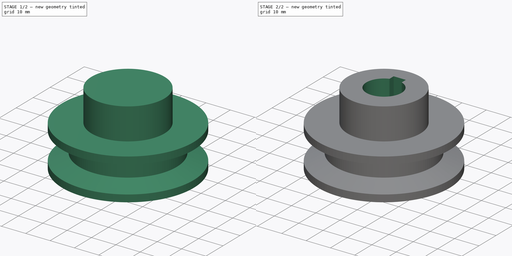
[diagram: build sequence overview — one tinted view per stage of 2, left to right]
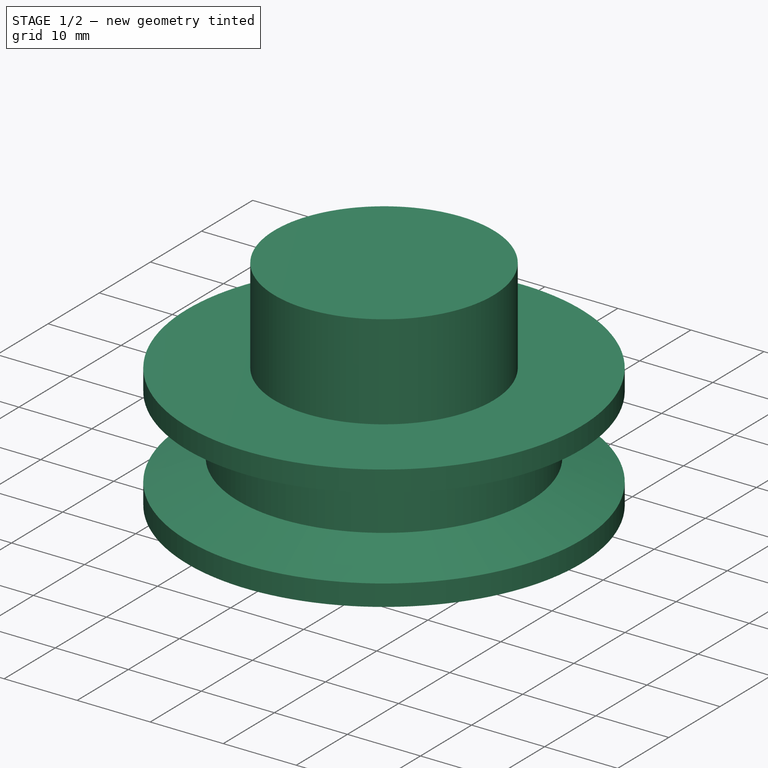
[diagram: stage 1 of 2 — iso view after this stage's code; geometry added in this stage tinted green]
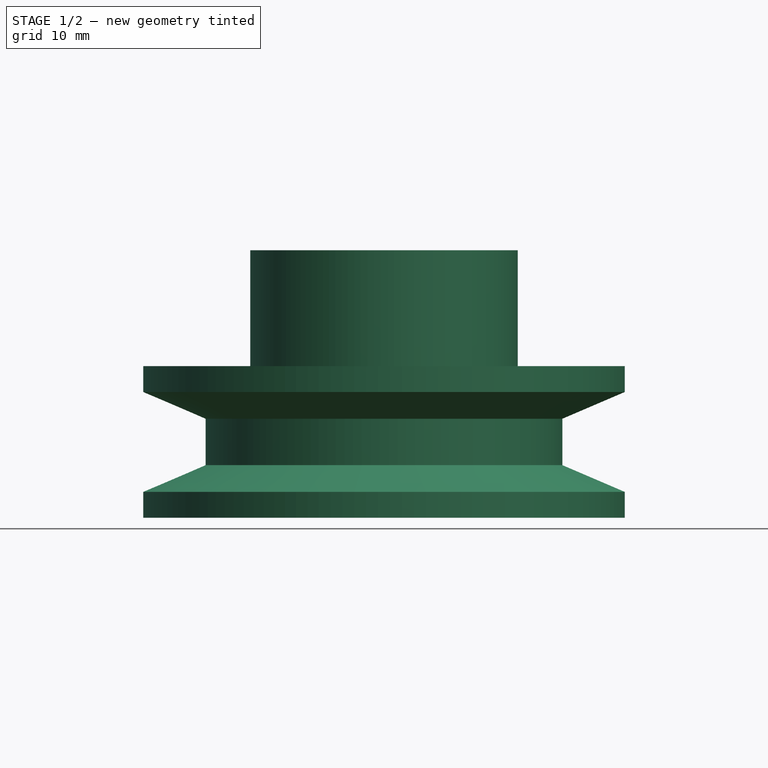
[diagram: stage 1 of 2 — front view after this stage's code; geometry added in this stage tinted green]
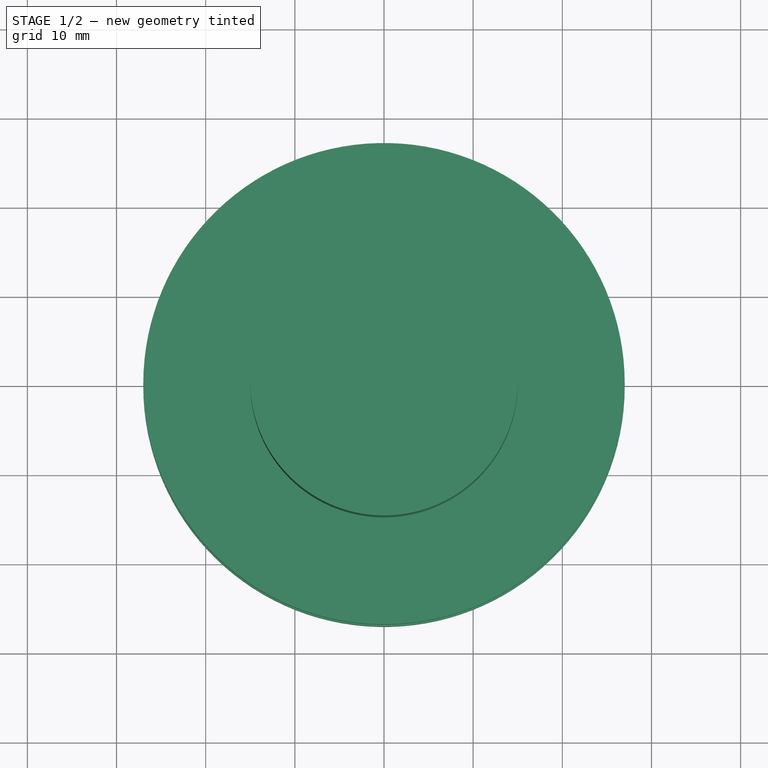
[diagram: stage 1 of 2 — top view after this stage's code; geometry added in this stage tinted green]
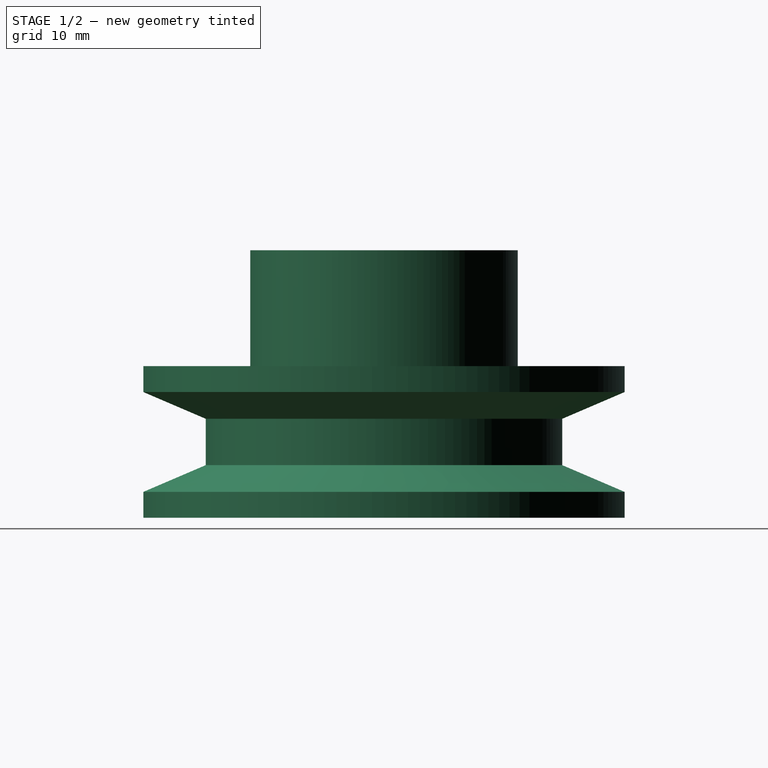
[diagram: stage 1 of 2 — right view after this stage's code; geometry added in this stage tinted green]
FCSTD DOCUMENT  (FreeCAD 0.22R35370 (Git))
Label: pulley4
License: All rights reserved
LicenseURL: http://en.wikipedia.org/wiki/All_rights_reserved
objects: Sketcher::SketchObject×4, Part::Mirroring×2, Part::FeaturePython×2, PartDesign::SubShapeBinder×2, PartDesign::Pocket×2, PartDesign::Revolution×1, PartDesign::Pad×1, PartDesign::Body×1
note: 19 computed .brp shape members not serialized (recipe doc carries the construction recipe); baked Part::Feature solids carry a one-line shape summary decoded from their .brp

FEATURE [Sketcher::SketchObject] Sketch  label="base_Sketch"
  FullyConstrained = true
  sketch-geometry (6):
    g0: LineSegment StartX=0 StartY=8.5 StartZ=0 EndX=27 EndY=8.5 EndZ=0
    g1: LineSegment StartX=27 StartY=8.5 StartZ=0 EndX=27 EndY=5.6 EndZ=0
    g2: LineSegment StartX=27 StartY=5.6 StartZ=0 EndX=20 EndY=2.6 EndZ=0
    g3: LineSegment StartX=20 StartY=2.6 StartZ=0 EndX=20 EndY=0 EndZ=0
    g4: LineSegment StartX=0 StartY=8.5 StartZ=0 EndX=0 EndY=0 EndZ=0
    g5: GeomPoint X=0 Y=-8.5 Z=0
  constraints (18):
    c: PointOnObject(g0,g-2)
    c: Horizontal(g0)
    c: Coincident(g0,g1)
    c: Vertical(g1)
    c: Coincident(g1,g2)
    c: Coincident(g2,g3)
    c: PointOnObject(g3,g-1)
    c: Vertical(g3)
    c: Coincident(g0,g4)
    c: Coincident(g4,g-1)
    c: DistanceY(g3,g3) = 2.6
    c: DistanceY(g1) = 5.6
    c: DistanceX(g3,g1) = 7
    c: DistanceY(g0) = 8.5
    c: DistanceX(g0) = 27  'outer_r'
    c: Symmetric(g5,g0,g-1)
    c: DistanceY(g5,g0) = 17  'height'
    c: DistanceX(g3) = 20  'inner_r'
FEATURE [Part::Mirroring] Part__Mirroring  label="Sketch (Mirror #1)"
  Base = (0,0,0)
  Normal = (0,1,0)
  Source = -> Sketch
FEATURE [Part::FeaturePython] Connect  # WARN: FeaturePython — macro-defined, semantics opaque (R4)
  Objects = -> [Sketch,Part__Mirroring]
  Tolerance = 0
FEATURE [PartDesign::SubShapeBinder] Binder
  BindCopyOnChange = 0
  BindMode = 0
  ClaimChildren = true
  Context = -> Body [Binder.]
  Fuse = false
  MakeFace = true
  OffsetFill = false
  OffsetIntersection = false
  OffsetJoinType = 0
  OffsetOpenResult = false
  PartialLoad = false
  Placement = pos=(0,0,0) rot=(1,0,0;1.5708rad)
  Relative = false
  Support = -> [Connect]
  _Version = 2
FEATURE [PartDesign::Revolution] Revolution
  Angle = 360
  Angle2 = 60
  Axis = (1e-16,1e-16,1)
  Base = (0,0,0)
  Placement = pos=(0,0,0) rot=(1,0,0;1.5708rad)
  Profile = -> Binder [Face1]
  ReferenceAxis = -> Z_Axis
  Reversed = true
  Type = 0
FEATURE [Sketcher::SketchObject] Sketch001
  FullyConstrained = true
  sketch-geometry (3):
    g0: ArcOfCircle CenterX=0 CenterY=0 CenterZ=0 NormalX=0 NormalY=0 NormalZ=1 AngleXU=0 Radius=7.25 StartAngle=4.71239 EndAngle=7.50193
    g1: LineSegment StartX=2.5 StartY=6.80533 StartZ=0 EndX=2.5 EndY=9.25 EndZ=0
    g2: LineSegment StartX=2.5 StartY=9.25 StartZ=0 EndX=0 EndY=9.25 EndZ=0
  constraints (10):
    c: Coincident(g0,g-1)
    c: PointOnObject(g0,g-2)
    c: Coincident(g1,g2)
    c: PointOnObject(g2,g-2)
    c: Horizontal(g2)
    c: Vertical(g1)
    c: DistanceX(g2,g2) = 2.5
    c: Coincident(g1,g0)
    c: Diameter(g0) = 14.5
    c: DistanceY(g0,g2) = 16.5
FEATURE [Part::Mirroring] Part__Mirroring001  label="Sketch001 (Mirror #2)"
  Base = (0,0,0)
  Normal = (1,0,0)
  Source = -> Sketch001
FEATURE [Part::FeaturePython] Connect001  # WARN: FeaturePython — macro-defined, semantics opaque (R4)
  Objects = -> [Part__Mirroring001,Sketch001]
  Tolerance = 0
FEATURE [PartDesign::SubShapeBinder] Binder001
  BindCopyOnChange = 0
  BindMode = 0
  ClaimChildren = true
  Context = -> Body [Binder001.]
  Fuse = false
  MakeFace = true
  OffsetFill = false
  OffsetIntersection = false
  OffsetJoinType = 0
  OffsetOpenResult = false
  PartialLoad = false
  Placement = pos=(0,0,-3.5) rot=(0,0,1;0rad)
  Relative = false
  Support = -> [Connect001]
  _Version = 2
  expr: .Placement.Base.z = -(<<base_Sketch>>.Constraints.height / 2 - 5 mm)
FEATURE [Sketcher::SketchObject] Sketch002
  FullyConstrained = true
  MapMode = 5
  Support = -> [XY_Plane]
  sketch-geometry (1):
    g0: Circle CenterX=0 CenterY=0 CenterZ=0 NormalX=0 NormalY=0 NormalZ=1 AngleXU=0 Radius=3
  constraints (2):
    c: Coincident(g0,g-1)
    c: Diameter(g0) = 6
FEATURE [Sketcher::SketchObject] Sketch003
  FullyConstrained = true
  MapMode = 5
  Support = -> [XY_Plane]
  sketch-geometry (1):
    g0: Circle CenterX=0 CenterY=0 CenterZ=0 NormalX=0 NormalY=0 NormalZ=1 AngleXU=0 Radius=15
  constraints (2):
    c: Coincident(g0,g-1)
    c: Diameter(g0) = 30
FEATURE [PartDesign::Pad] Pad
  BaseFeature = -> Revolution
  Direction = (0,0,1)
  Length = 21.5
  Length2 = 10
  Placement = pos=(0,0,0) rot=(1,0,0;1.5708rad)
  Profile = -> Sketch003
  ReferenceAxis = -> Sketch003 [N_Axis]
  Type = 0
  expr: Length = 30 mm - <<base_Sketch>>.Constraints.height / 2
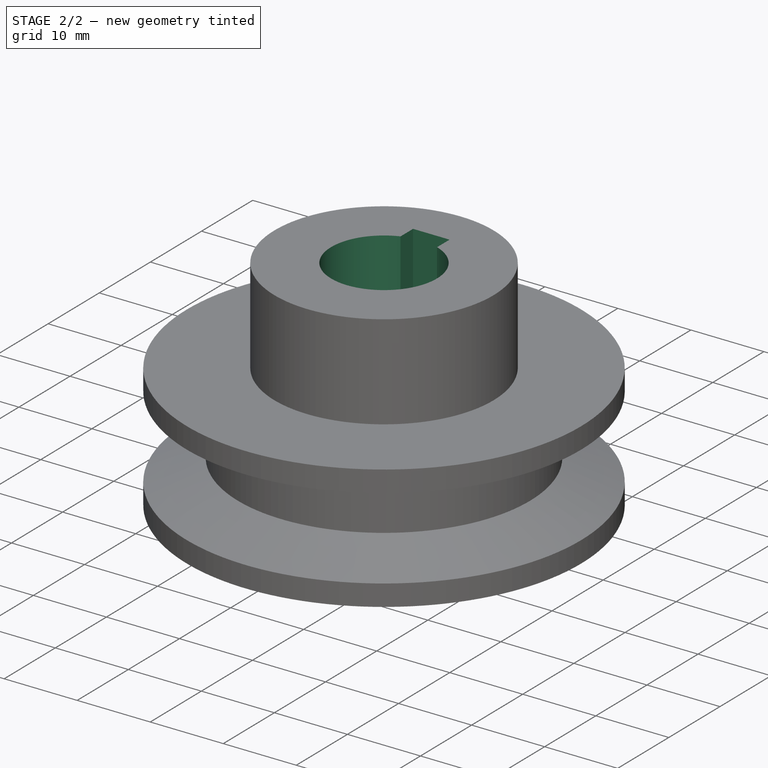
[diagram: stage 2 of 2 — iso view after this stage's code; geometry added in this stage tinted green]
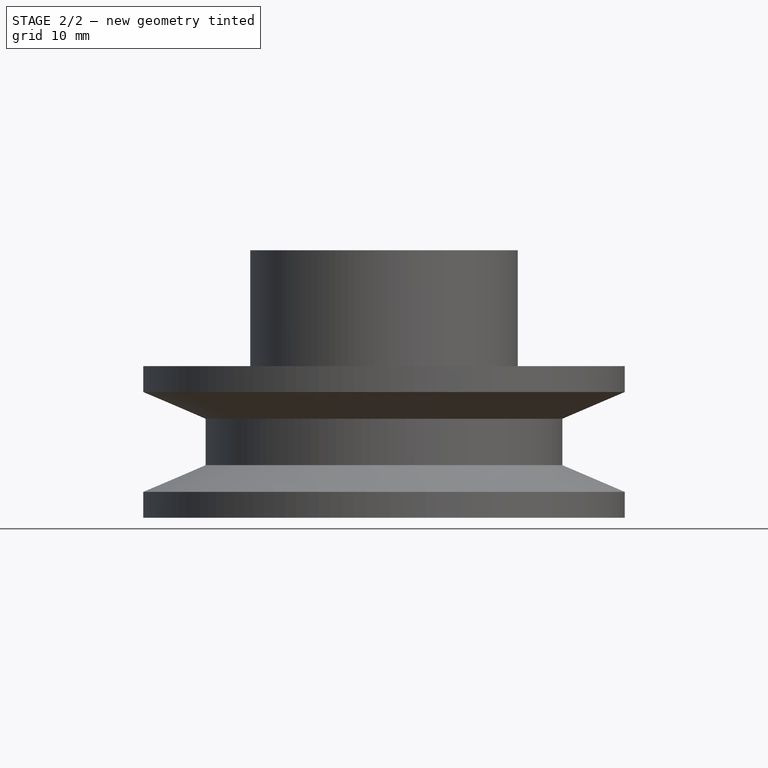
[diagram: stage 2 of 2 — front view after this stage's code; geometry added in this stage tinted green]
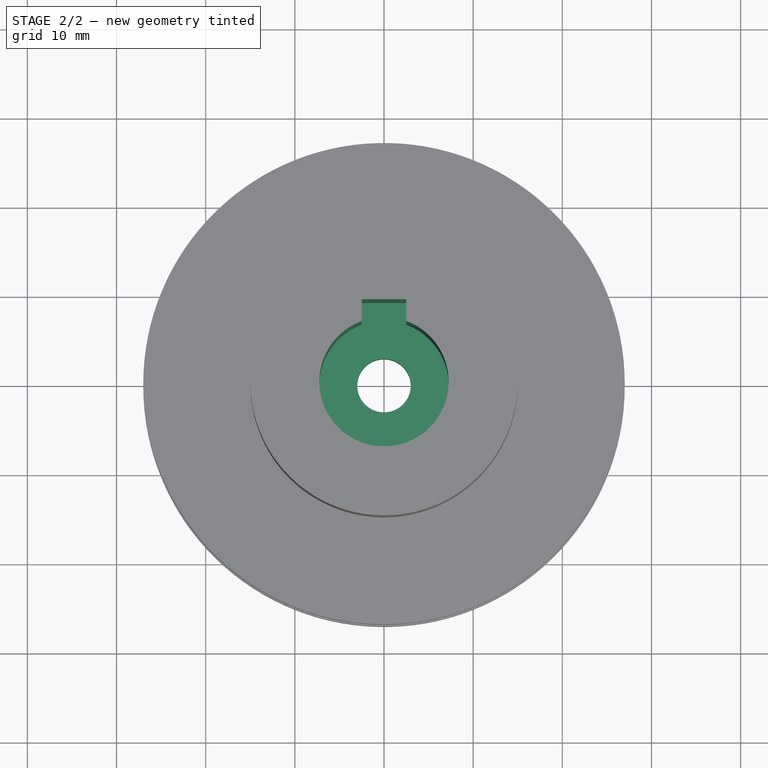
[diagram: stage 2 of 2 — top view after this stage's code; geometry added in this stage tinted green]
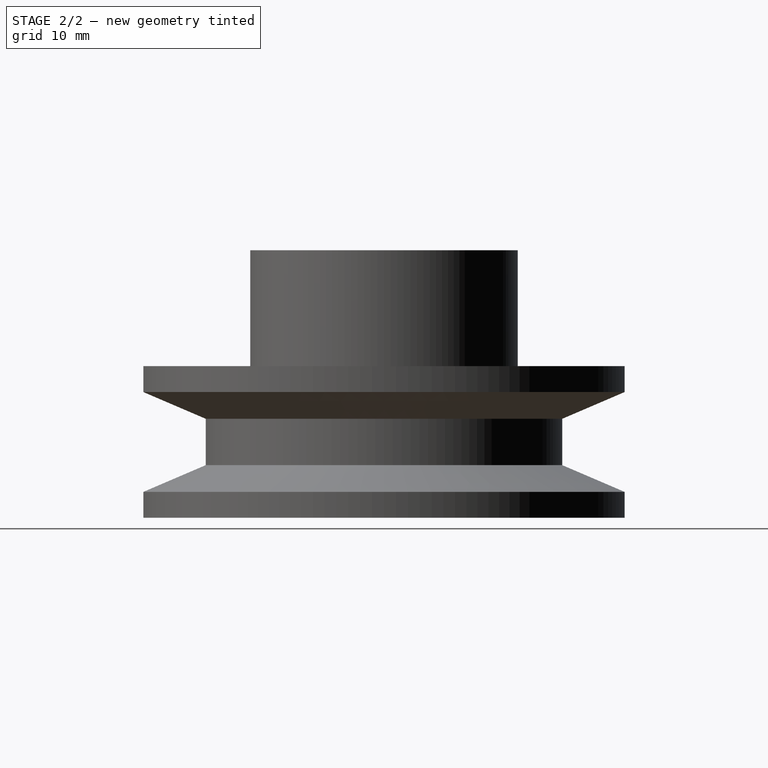
[diagram: stage 2 of 2 — right view after this stage's code; geometry added in this stage tinted green]
FEATURE [PartDesign::Pocket] Pocket001
  BaseFeature = -> Pad
  Direction = (0,0,-1)
  Length = 5
  Length2 = 5
  Placement = pos=(0,0,0) rot=(1,0,0;1.5708rad)
  Profile = -> Sketch002
  ReferenceAxis = -> Sketch002 [N_Axis]
  Type = 1
FEATURE [PartDesign::Pocket] Pocket
  BaseFeature = -> Pocket001
  Direction = (0,0,-1)
  Length = 5
  Length2 = 5
  Placement = pos=(0,0,0) rot=(1,0,0;1.5708rad)
  Profile = -> Binder001
  Refine = true
  Reversed = true
  Type = 1
FEATURE [PartDesign::Body] Body
  Group = -> [Binder,Revolution,Binder001,Sketch002,Sketch003,Pad,Pocket001,Pocket]
  Origin = -> Origin
  Tip = -> Pocket
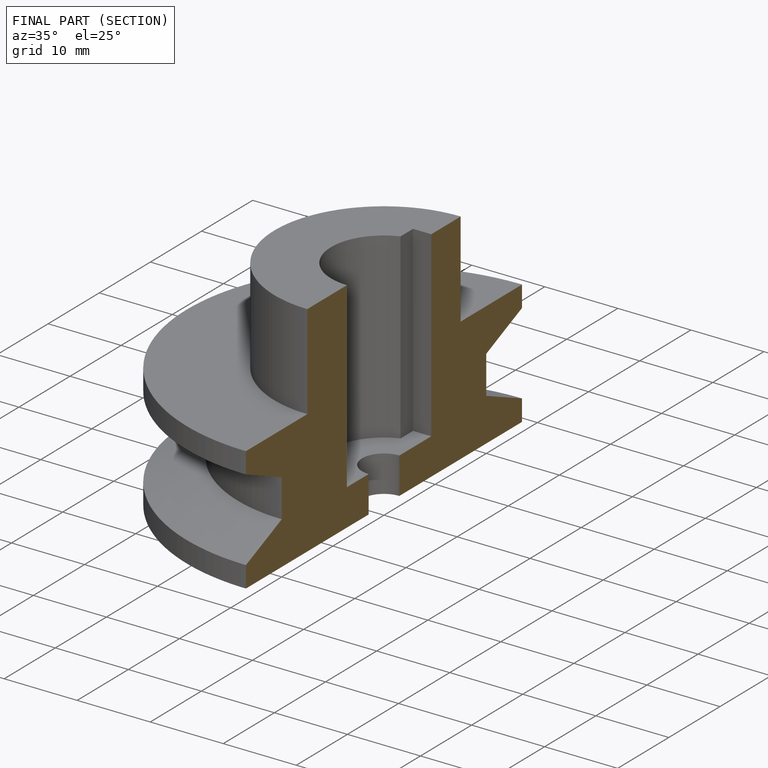
[diagram: finished part — half-section view (interior)]
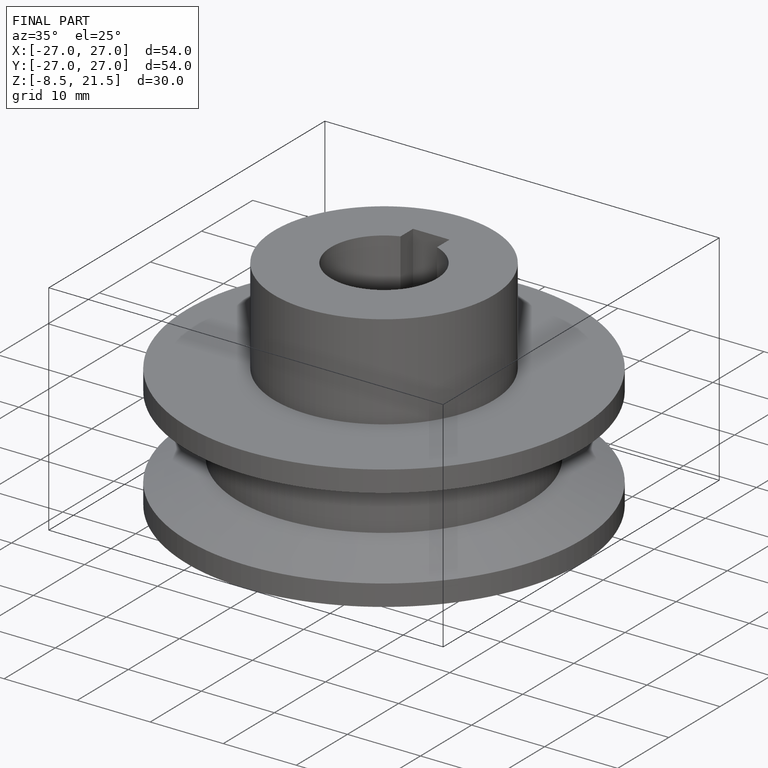
[diagram: finished part — iso view with bounding-box wireframe]
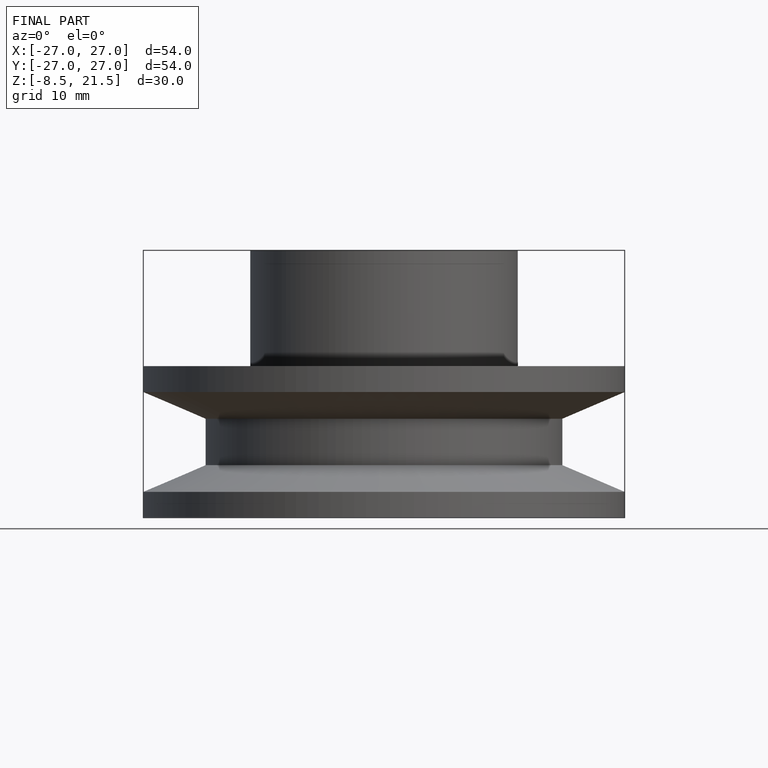
[diagram: finished part — front view with bounding-box wireframe]
